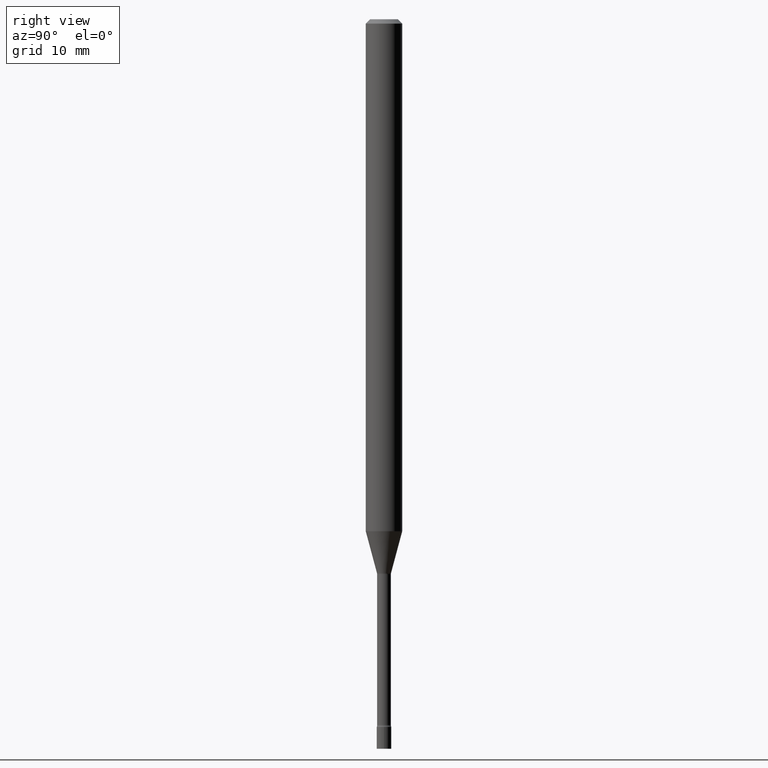
[diagram: clean part render]
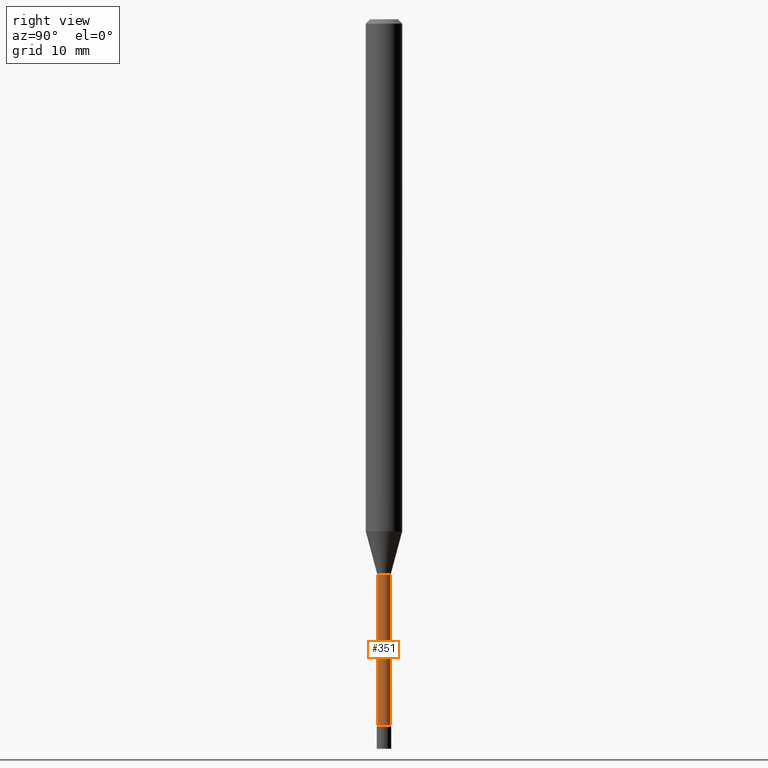
[diagram: same view with one face highlighted and labeled with its STEP entity id]
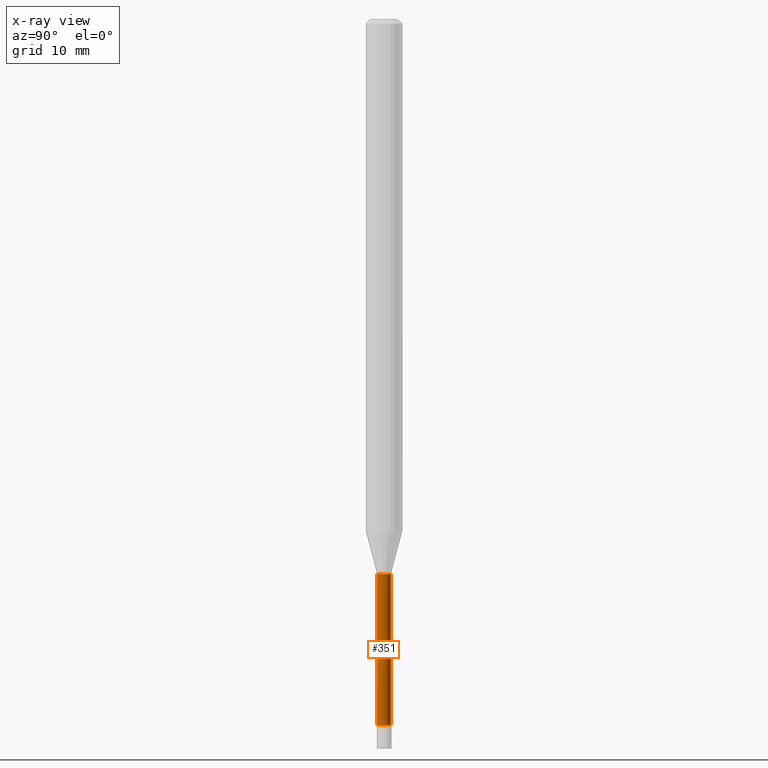
[diagram: x-ray of the same camera — body ghosted, the highlighted face saturated]
A machine part, right view. The second image highlights one B-rep face of the part: STEP entity #351.
The next image is the same camera in x-ray: the body ghosted, the highlighted face saturated — about 0% of this face is hidden behind the body in this view.
In plain terms, the highlighted cylindrical surface (edge-blend (fillet) strip) has radius 0.5969 mm, axis along (-0, 0, 1).
Its self-contained STEP definition (entity closure, byte-faithful):
#4 = DIRECTION ( 'NONE',  ( -2.445461215800332779E-29, 3.491492208706202500E-15, 1.000000000000000000 ) ) ;
#10 = EDGE_CURVE ( 'NONE', #329, #120, #154, .T. ) ;
#20 = CARTESIAN_POINT ( 'NONE',  ( 0.000000000000000000, 0.000000000000000000, 0.000000000000000000 ) ) ;
#23 = AXIS2_PLACEMENT_3D ( 'NONE', #369, #4, #44 ) ;
#41 = EDGE_CURVE ( 'NONE', #120, #295, #491, .T. ) ;
#44 = DIRECTION ( 'NONE',  ( -6.982962677686265133E-15, -1.000000000000000000, 0.000000000000000000 ) ) ;
#62 = DIRECTION ( 'NONE',  ( -2.445461215800332779E-29, 3.491492208706202500E-15, 1.000000000000000000 ) ) ;
#116 = LINE ( 'NONE', #297, #348 ) ;
#119 = CARTESIAN_POINT ( 'NONE',  ( -1.640996229255686790E-16, -0.02350000000000852796, -2.418461651584689509 ) ) ;
#120 = VERTEX_POINT ( 'NONE', #142 ) ;
#141 = CIRCLE ( 'NONE', #23, 0.02350000000000008332 ) ;
#142 = CARTESIAN_POINT ( 'NONE',  ( -1.640996229255807584E-16, -0.02350000000000664405, -1.901974787463811323 ) ) ;
#153 = ORIENTED_EDGE ( 'NONE', *, *, #313, .T. ) ;
#154 = LINE ( 'NONE', #316, #476 ) ;
#195 = CARTESIAN_POINT ( 'NONE',  ( 1.669775429036829552E-16, 0.02349999999999336300, -1.901974787463811323 ) ) ;
#198 = EDGE_LOOP ( 'NONE', ( #269, #153, #284, #447 ) ) ;
#223 = AXIS2_PLACEMENT_3D ( 'NONE', #474, #62, #431 ) ;
#227 = DIRECTION ( 'NONE',  ( -2.445461215800332779E-29, 3.491492208706202500E-15, 1.000000000000000000 ) ) ;
#237 = DIRECTION ( 'NONE',  ( -2.445461215800333059E-29, 3.491492208706202106E-15, 1.000000000000000000 ) ) ;
#265 = AXIS2_PLACEMENT_3D ( 'NONE', #20, #227, #299 ) ;
#269 = ORIENTED_EDGE ( 'NONE', *, *, #383, .T. ) ;
#284 = ORIENTED_EDGE ( 'NONE', *, *, #41, .F. ) ;
#292 = CYLINDRICAL_SURFACE ( 'NONE', #265, 0.02350000000000004516 ) ;
#295 = VERTEX_POINT ( 'NONE', #195 ) ;
#297 = CARTESIAN_POINT ( 'NONE',  ( 1.669775429036238399E-16, 0.02350000000000004516, -8.205006690459591386E-17 ) ) ;
#299 = DIRECTION ( 'NONE',  ( -6.982962677686265133E-15, -1.000000000000000000, 3.491492208706202500E-15 ) ) ;
#313 = EDGE_CURVE ( 'NONE', #361, #295, #116, .T. ) ;
#316 = CARTESIAN_POINT ( 'NONE',  ( -1.640996229256275477E-16, -0.02350000000000004516, 8.205006690459591386E-17 ) ) ;
#317 = CARTESIAN_POINT ( 'NONE',  ( 1.723066134218837359E-16, 0.02349999999999163869, -2.418461651584689509 ) ) ;
#325 = DIRECTION ( 'NONE',  ( -2.445461215800333059E-29, 3.491492208706202106E-15, 1.000000000000000000 ) ) ;
#329 = VERTEX_POINT ( 'NONE', #119 ) ;
#348 = VECTOR ( 'NONE', #325, 39.37007874015748143 ) ;
#351 = ADVANCED_FACE ( 'NONE', ( #449 ), #292, .T. ) ;
#361 = VERTEX_POINT ( 'NONE', #317 ) ;
#369 = CARTESIAN_POINT ( 'NONE',  ( 5.914254170850774673E-29, -8.444040013562677130E-15, -2.418461651584689509 ) ) ;
#383 = EDGE_CURVE ( 'NONE', #329, #361, #141, .T. ) ;
#431 = DIRECTION ( 'NONE',  ( -6.982962677686265922E-15, -1.000000000000000000, 0.000000000000000000 ) ) ;
#447 = ORIENTED_EDGE ( 'NONE', *, *, #10, .F. ) ;
#449 = FACE_OUTER_BOUND ( 'NONE', #198, .T. ) ;
#474 = CARTESIAN_POINT ( 'NONE',  ( 4.651205576172831719E-29, -6.640730151585532427E-15, -1.901974787463811323 ) ) ;
#476 = VECTOR ( 'NONE', #237, 39.37007874015748143 ) ;
#491 = CIRCLE ( 'NONE', #223, 0.02350000000000000352 ) ;